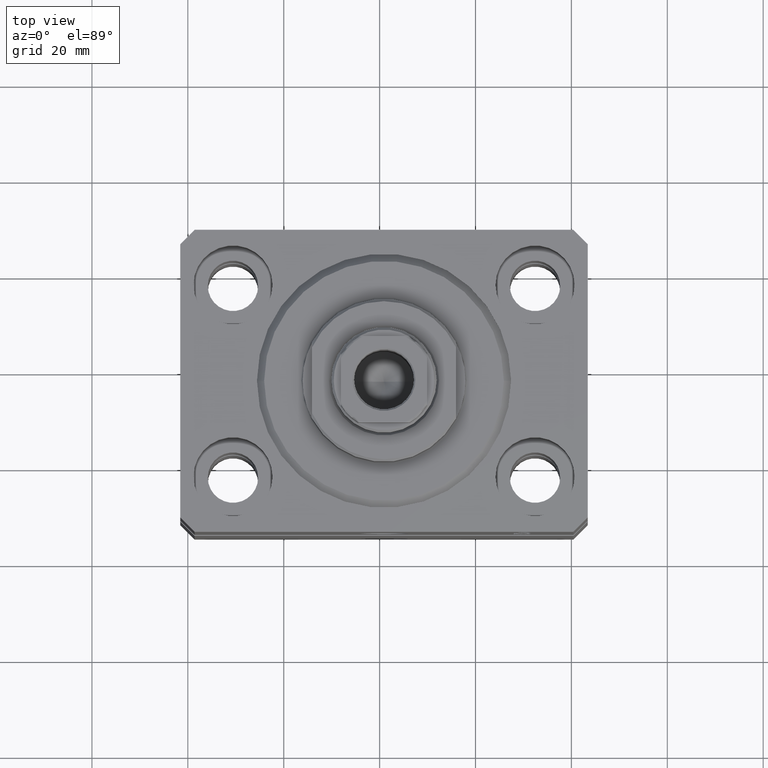
[diagram: clean part render]
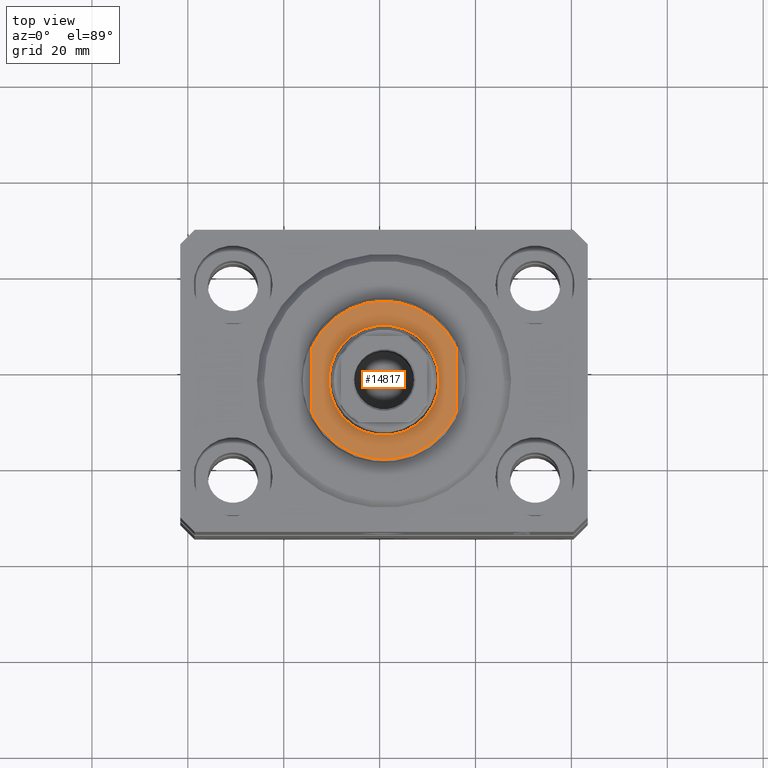
[diagram: same view with one face highlighted and labeled with its STEP entity id]
A machine part, top view. The second image highlights one B-rep face of the part: STEP entity #14817.
In plain terms, the highlighted planar face has unit normal (0, 0, 1).
Its self-contained STEP definition (entity closure, byte-faithful):
#392 = EDGE_CURVE ( 'NONE', #1196, #22255, #38726, .T. ) ;
#984 = ORIENTED_EDGE ( 'NONE', *, *, #38228, .T. ) ;
#1166 = CARTESIAN_POINT ( 'NONE',  ( 15.00000000000000000, -42.42640687119285303, -7.000000000000000000 ) ) ;
#1196 = VERTEX_POINT ( 'NONE', #36862 ) ;
#1543 = VERTEX_POINT ( 'NONE', #19317 ) ;
#2415 = DIRECTION ( 'NONE',  ( 0.000000000000000000, 0.000000000000000000, -1.000000000000000000 ) ) ;
#2571 = CIRCLE ( 'NONE', #42402, 11.49999999999999645 ) ;
#3013 = EDGE_CURVE ( 'NONE', #33744, #12804, #12759, .T. ) ;
#3371 = VECTOR ( 'NONE', #35615, 1000.000000000000000 ) ;
#4213 = DIRECTION ( 'NONE',  ( -0.000000000000000000, -0.000000000000000000, 1.000000000000000000 ) ) ;
#4650 = PLANE ( 'NONE',  #12282 ) ;
#4886 = DIRECTION ( 'NONE',  ( -1.000000000000000000, 0.000000000000000000, -0.000000000000000000 ) ) ;
#5975 = DIRECTION ( 'NONE',  ( -1.000000000000000000, 0.000000000000000000, 0.000000000000000000 ) ) ;
#6547 = EDGE_CURVE ( 'NONE', #1196, #12804, #27852, .T. ) ;
#6859 = CARTESIAN_POINT ( 'NONE',  ( 0.000000000000000000, 0.000000000000000000, -7.000000000000000000 ) ) ;
#7567 = CIRCLE ( 'NONE', #11903, 11.49999999999999645 ) ;
#8078 = CARTESIAN_POINT ( 'NONE',  ( 0.000000000000000000, 0.000000000000000000, -7.000000000000000000 ) ) ;
#11903 = AXIS2_PLACEMENT_3D ( 'NONE', #6859, #41525, #40859 ) ;
#12282 = AXIS2_PLACEMENT_3D ( 'NONE', #8078, #42516, #4886 ) ;
#12759 = CIRCLE ( 'NONE', #23575, 16.50000000000000711 ) ;
#12804 = VERTEX_POINT ( 'NONE', #35912 ) ;
#13326 = ORIENTED_EDGE ( 'NONE', *, *, #392, .T. ) ;
#13824 = CARTESIAN_POINT ( 'NONE',  ( -15.00000000000000000, -42.42640687119285303, -7.000000000000000000 ) ) ;
#14736 = EDGE_LOOP ( 'NONE', ( #984, #36912 ) ) ;
#14817 = ADVANCED_FACE ( 'NONE', ( #25969, #32081 ), #4650, .T. ) ;
#15571 = CARTESIAN_POINT ( 'NONE',  ( -11.49999999999999645, 0.000000000000000000, -7.000000000000000000 ) ) ;
#15973 = CARTESIAN_POINT ( 'NONE',  ( 0.000000000000000000, 0.000000000000000000, -7.000000000000000000 ) ) ;
#17401 = ORIENTED_EDGE ( 'NONE', *, *, #39998, .T. ) ;
#19317 = CARTESIAN_POINT ( 'NONE',  ( 11.49999999999999645, 1.408343819019455781E-15, -7.000000000000000000 ) ) ;
#19857 = CARTESIAN_POINT ( 'NONE',  ( 0.000000000000000000, 0.000000000000000000, -7.000000000000000000 ) ) ;
#19941 = CARTESIAN_POINT ( 'NONE',  ( 14.99999999999999645, -6.873863542433781504, -7.000000000000000000 ) ) ;
#22255 = VERTEX_POINT ( 'NONE', #37929 ) ;
#22476 = LINE ( 'NONE', #1166, #3371 ) ;
#23575 = AXIS2_PLACEMENT_3D ( 'NONE', #19857, #2415, #33900 ) ;
#25036 = VECTOR ( 'NONE', #31252, 1000.000000000000000 ) ;
#25380 = EDGE_LOOP ( 'NONE', ( #13326, #17401, #31479, #33981 ) ) ;
#25969 = FACE_BOUND ( 'NONE', #14736, .T. ) ;
#27852 = LINE ( 'NONE', #13824, #25036 ) ;
#29788 = DIRECTION ( 'NONE',  ( 0.000000000000000000, 0.000000000000000000, -1.000000000000000000 ) ) ;
#31070 = VERTEX_POINT ( 'NONE', #15571 ) ;
#31252 = DIRECTION ( 'NONE',  ( -0.000000000000000000, -1.000000000000000000, -0.000000000000000000 ) ) ;
#31467 = AXIS2_PLACEMENT_3D ( 'NONE', #15973, #29788, #5975 ) ;
#31479 = ORIENTED_EDGE ( 'NONE', *, *, #3013, .T. ) ;
#31870 = CARTESIAN_POINT ( 'NONE',  ( 0.000000000000000000, 0.000000000000000000, -7.000000000000000000 ) ) ;
#32081 = FACE_OUTER_BOUND ( 'NONE', #25380, .T. ) ;
#33744 = VERTEX_POINT ( 'NONE', #19941 ) ;
#33900 = DIRECTION ( 'NONE',  ( -1.000000000000000000, 0.000000000000000000, 0.000000000000000000 ) ) ;
#33981 = ORIENTED_EDGE ( 'NONE', *, *, #6547, .F. ) ;
#34213 = EDGE_CURVE ( 'NONE', #1543, #31070, #7567, .T. ) ;
#35615 = DIRECTION ( 'NONE',  ( 0.000000000000000000, -1.000000000000000000, -0.000000000000000000 ) ) ;
#35912 = CARTESIAN_POINT ( 'NONE',  ( -15.00000000000000000, -6.873863542433783280, -7.000000000000000000 ) ) ;
#36862 = CARTESIAN_POINT ( 'NONE',  ( -14.99999999999999645, 6.873863542433781504, -7.000000000000000000 ) ) ;
#36912 = ORIENTED_EDGE ( 'NONE', *, *, #34213, .T. ) ;
#37929 = CARTESIAN_POINT ( 'NONE',  ( 14.99999999999999645, 6.873863542433781504, -7.000000000000000000 ) ) ;
#38228 = EDGE_CURVE ( 'NONE', #31070, #1543, #2571, .T. ) ;
#38726 = CIRCLE ( 'NONE', #31467, 16.50000000000000711 ) ;
#39998 = EDGE_CURVE ( 'NONE', #22255, #33744, #22476, .T. ) ;
#40859 = DIRECTION ( 'NONE',  ( -1.000000000000000000, 0.000000000000000000, 0.000000000000000000 ) ) ;
#41525 = DIRECTION ( 'NONE',  ( -0.000000000000000000, -0.000000000000000000, 1.000000000000000000 ) ) ;
#41618 = DIRECTION ( 'NONE',  ( -1.000000000000000000, 0.000000000000000000, 0.000000000000000000 ) ) ;
#42402 = AXIS2_PLACEMENT_3D ( 'NONE', #31870, #4213, #41618 ) ;
#42516 = DIRECTION ( 'NONE',  ( 0.000000000000000000, 0.000000000000000000, -1.000000000000000000 ) ) ;